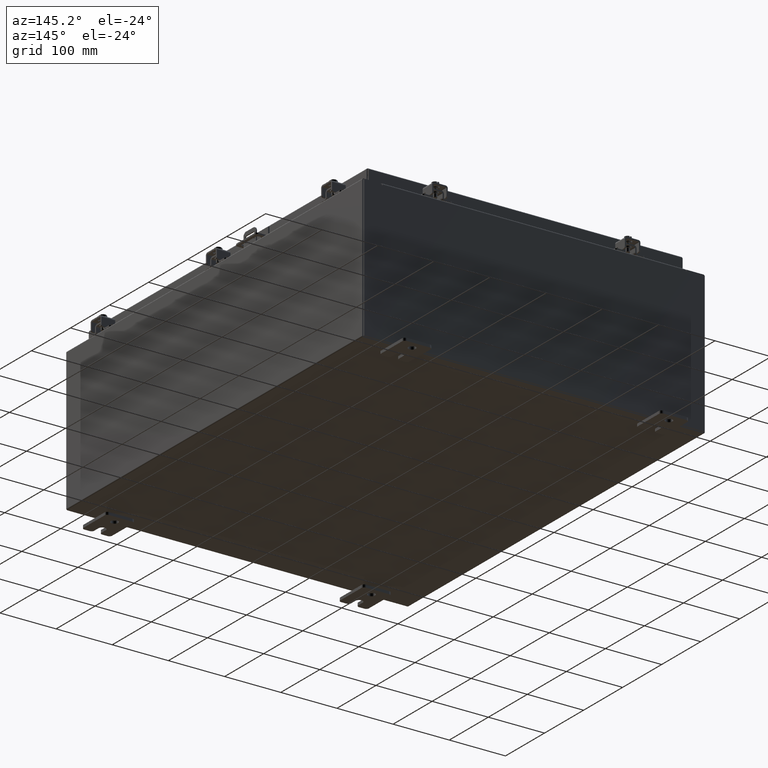
[diagram: clean part render]
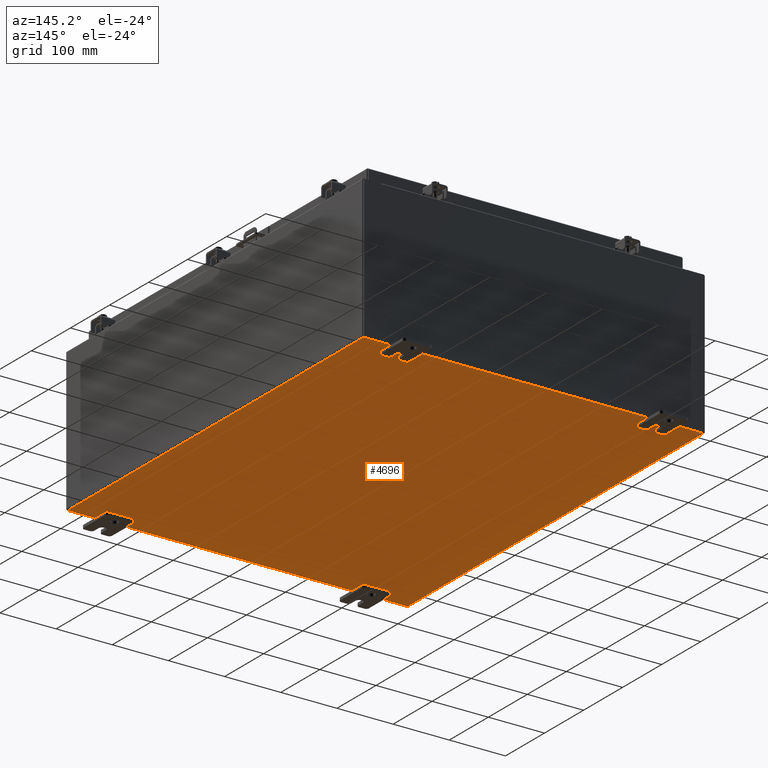
[diagram: same view with one face highlighted and labeled with its STEP entity id]
A machine part, auxiliary view. The second image highlights one B-rep face of the part: STEP entity #4696.
In plain terms, the highlighted planar face has unit normal (0, 0, -1).
Its self-contained STEP definition (entity closure, byte-faithful):
#771 = LINE ( 'NONE', #21684, #8343 ) ;
#1733 = CARTESIAN_POINT ( 'NONE',  ( -12.00000000000000500, 14.92530000000000000, -0.07470000000000000300 ) ) ;
#3060 = DIRECTION ( 'NONE',  ( -0.0000000000000000000, 1.000000000000000000, -0.0000000000000000000 ) ) ;
#3543 = EDGE_LOOP ( 'NONE', ( #7491, #32125, #24299, #33343 ) ) ;
#4696 = ADVANCED_FACE ( 'NONE', ( #27749 ), #25627, .T. ) ;
#5085 = DIRECTION ( 'NONE',  ( -1.000000000000000000, -0.0000000000000000000, -0.0000000000000000000 ) ) ;
#5332 = CARTESIAN_POINT ( 'NONE',  ( -11.91230000000000500, -14.92530000000000000, -0.07469999999999994700 ) ) ;
#5764 = VERTEX_POINT ( 'NONE', #31978 ) ;
#5936 = DIRECTION ( 'NONE',  ( -1.000000000000000000, 0.0000000000000000000, -0.0000000000000000000 ) ) ;
#6293 = CARTESIAN_POINT ( 'NONE',  ( -12.00000000000000500, -14.92530000000000000, -0.07470000000000000300 ) ) ;
#7019 = EDGE_CURVE ( 'NONE', #13561, #14579, #13041, .T. ) ;
#7491 = ORIENTED_EDGE ( 'NONE', *, *, #24213, .F. ) ;
#7640 = CARTESIAN_POINT ( 'NONE',  ( -11.91230000000000500, -14.92530000000000000, -0.07469999999999994700 ) ) ;
#8343 = VECTOR ( 'NONE', #21437, 39.37007874015748100 ) ;
#8546 = DIRECTION ( 'NONE',  ( 0.0000000000000000000, 0.0000000000000000000, -1.000000000000000000 ) ) ;
#10763 = CARTESIAN_POINT ( 'NONE',  ( 11.91229999999999700, 14.92530000000000000, -0.07470000000000226500 ) ) ;
#11313 = EDGE_CURVE ( 'NONE', #24803, #14579, #29492, .T. ) ;
#13041 = LINE ( 'NONE', #1733, #29124 ) ;
#13561 = VERTEX_POINT ( 'NONE', #10763 ) ;
#13822 = CARTESIAN_POINT ( 'NONE',  ( -11.91230000000000500, 14.92530000000000000, -0.07470000000000000300 ) ) ;
#14579 = VERTEX_POINT ( 'NONE', #13822 ) ;
#15259 = LINE ( 'NONE', #6293, #26574 ) ;
#21437 = DIRECTION ( 'NONE',  ( -0.0000000000000000000, -1.000000000000000000, 8.208677865577646300E-017 ) ) ;
#21684 = CARTESIAN_POINT ( 'NONE',  ( 11.91229999999999700, 14.92530000000000000, -0.07470000000000226500 ) ) ;
#24213 = EDGE_CURVE ( 'NONE', #24803, #5764, #15259, .T. ) ;
#24299 = ORIENTED_EDGE ( 'NONE', *, *, #7019, .F. ) ;
#24803 = VERTEX_POINT ( 'NONE', #7640 ) ;
#25627 = PLANE ( 'NONE',  #27507 ) ;
#26574 = VECTOR ( 'NONE', #28344, 39.37007874015748100 ) ;
#26934 = CARTESIAN_POINT ( 'NONE',  ( 0.0000000000000000000, 0.0000000000000000000, -0.07470000000000000300 ) ) ;
#27507 = AXIS2_PLACEMENT_3D ( 'NONE', #26934, #8546, #5936 ) ;
#27749 = FACE_OUTER_BOUND ( 'NONE', #3543, .T. ) ;
#28069 = EDGE_CURVE ( 'NONE', #13561, #5764, #771, .T. ) ;
#28344 = DIRECTION ( 'NONE',  ( 1.000000000000000000, 0.0000000000000000000, 0.0000000000000000000 ) ) ;
#29124 = VECTOR ( 'NONE', #5085, 39.37007874015748100 ) ;
#29492 = LINE ( 'NONE', #5332, #30071 ) ;
#30071 = VECTOR ( 'NONE', #3060, 39.37007874015748100 ) ;
#31978 = CARTESIAN_POINT ( 'NONE',  ( 11.91229999999998800, -14.92530000000000000, -0.07470000000000000300 ) ) ;
#32125 = ORIENTED_EDGE ( 'NONE', *, *, #11313, .T. ) ;
#33343 = ORIENTED_EDGE ( 'NONE', *, *, #28069, .T. ) ;